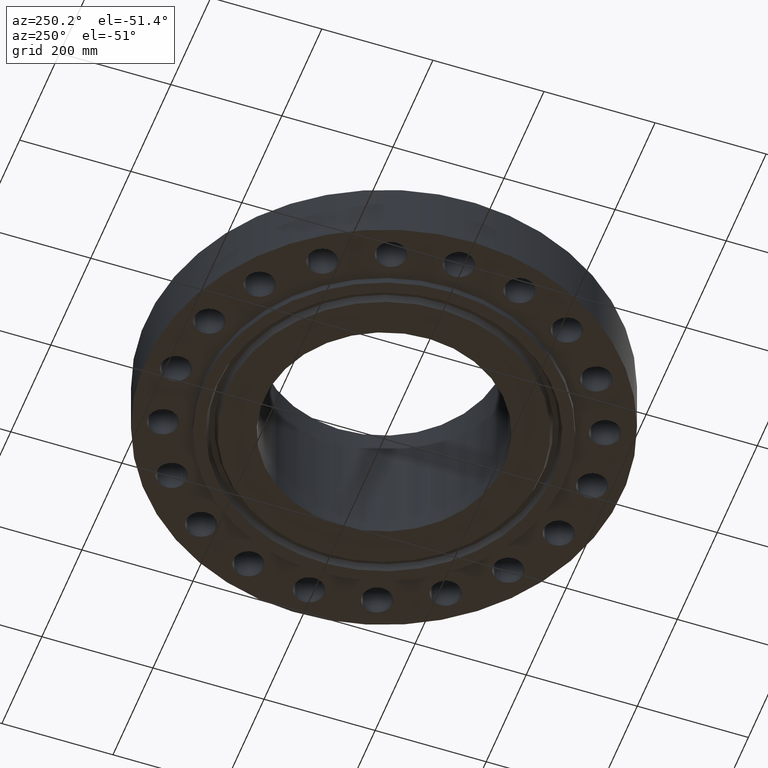
[diagram: clean part render]
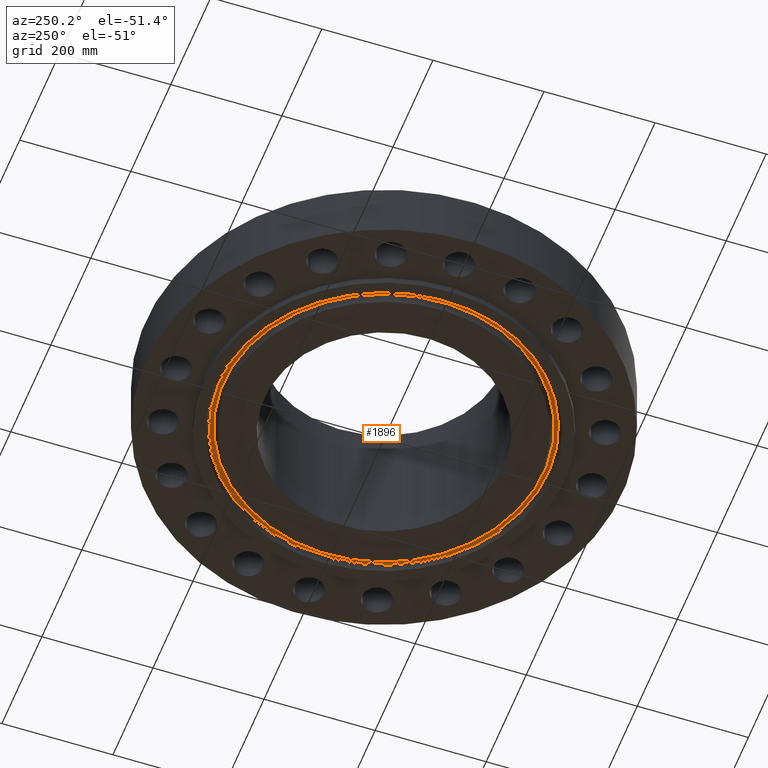
[diagram: same view with one face highlighted and labeled with its STEP entity id]
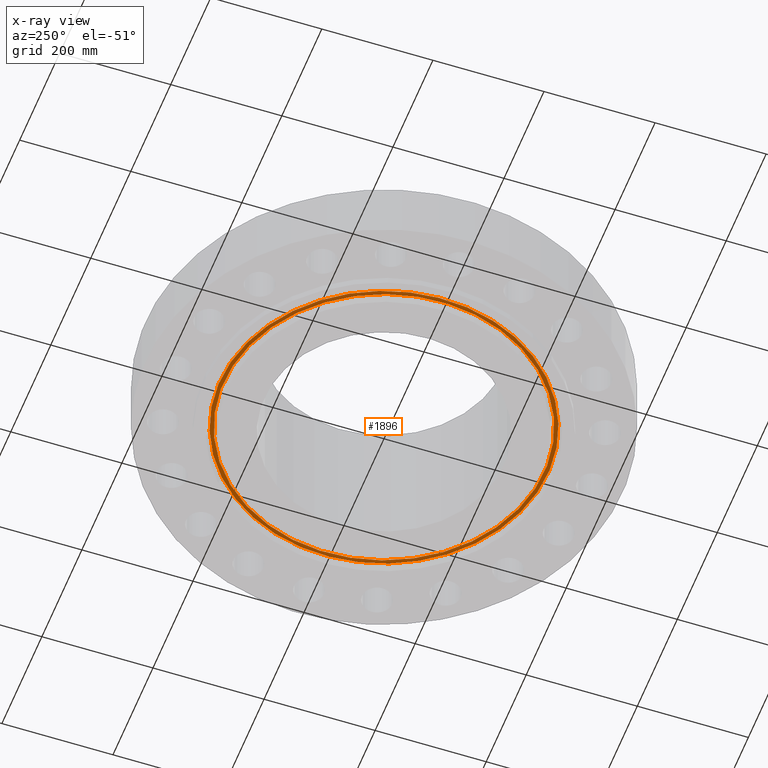
[diagram: x-ray of the same camera — body ghosted, the highlighted face saturated]
A machine part, auxiliary view. The second image highlights one B-rep face of the part: STEP entity #1896.
The next image is the same camera in x-ray: the body ghosted, the highlighted face saturated — about 0% of this face is hidden behind the body in this view.
In plain terms, the highlighted planar face has unit normal (0, 0, -1).
Its self-contained STEP definition (entity closure, byte-faithful):
#570=AXIS2_PLACEMENT_3D('Plane Axis2P3D',#567,#568,#569) ;
#1818=AXIS2_PLACEMENT_3D('Circle Axis2P3D',#1816,#1817,$) ;
#1864=AXIS2_PLACEMENT_3D('Circle Axis2P3D',#1862,#1863,$) ;
#1880=AXIS2_PLACEMENT_3D('Circle Axis2P3D',#1878,#1879,$) ;
#1889=AXIS2_PLACEMENT_3D('Circle Axis2P3D',#1887,#1888,$) ;
#567=CARTESIAN_POINT('Axis2P3D Location',(0.,12.7500000001,0.)) ;
#1813=CARTESIAN_POINT('Vertex',(-5.57909644433,10.2124675396,-3.58418456769E-016)) ;
#1816=CARTESIAN_POINT('Axis2P3D Location',(0.,0.,-3.58418456769E-016)) ;
#1820=CARTESIAN_POINT('Vertex',(5.57909644433,-10.2124675396,-3.58418456769E-016)) ;
#1862=CARTESIAN_POINT('Axis2P3D Location',(0.,0.,-3.58418456769E-016)) ;
#1878=CARTESIAN_POINT('Axis2P3D Location',(0.,0.,0.)) ;
#1882=CARTESIAN_POINT('Vertex',(5.44769094361,-9.97193138396,5.76966296262E-016)) ;
#1884=CARTESIAN_POINT('Vertex',(-5.44769094361,9.97193138396,5.76966296262E-016)) ;
#1887=CARTESIAN_POINT('Axis2P3D Location',(0.,0.,0.)) ;
#568=DIRECTION('Axis2P3D Direction',(0.,0.,-0.0393700787402)) ;
#569=DIRECTION('Axis2P3D XDirection',(0.0393700787402,0.,0.)) ;
#1817=DIRECTION('Axis2P3D Direction',(0.,0.,0.0393700787402)) ;
#1863=DIRECTION('Axis2P3D Direction',(0.,0.,0.0393700787402)) ;
#1879=DIRECTION('Axis2P3D Direction',(0.,0.,-0.0393700787402)) ;
#1888=DIRECTION('Axis2P3D Direction',(0.,0.,-0.0393700787402)) ;
#1875=ORIENTED_EDGE('',*,*,#1822,.F.) ;
#1876=ORIENTED_EDGE('',*,*,#1866,.F.) ;
#1893=ORIENTED_EDGE('',*,*,#1886,.T.) ;
#1894=ORIENTED_EDGE('',*,*,#1891,.T.) ;
#1895=FACE_BOUND('',#1892,.T.) ;
#1896=ADVANCED_FACE('PartBody',(#1877,#1895),#571,.T.) ;
#1819=CIRCLE('generated circle',#1818,11.6370447444) ;
#1865=CIRCLE('generated circle',#1864,11.6370447444) ;
#1881=CIRCLE('generated circle',#1880,11.3629552557) ;
#1890=CIRCLE('generated circle',#1889,11.3629552557) ;
#1822=EDGE_CURVE('',#1814,#1821,#1819,.T.) ;
#1866=EDGE_CURVE('',#1821,#1814,#1865,.T.) ;
#1886=EDGE_CURVE('',#1883,#1885,#1881,.F.) ;
#1891=EDGE_CURVE('',#1885,#1883,#1890,.F.) ;
#1874=EDGE_LOOP('',(#1875,#1876)) ;
#1892=EDGE_LOOP('',(#1893,#1894)) ;
#1877=FACE_OUTER_BOUND('',#1874,.T.) ;
#571=PLANE('',#570) ;
#1814=VERTEX_POINT('',#1813) ;
#1821=VERTEX_POINT('',#1820) ;
#1883=VERTEX_POINT('',#1882) ;
#1885=VERTEX_POINT('',#1884) ;